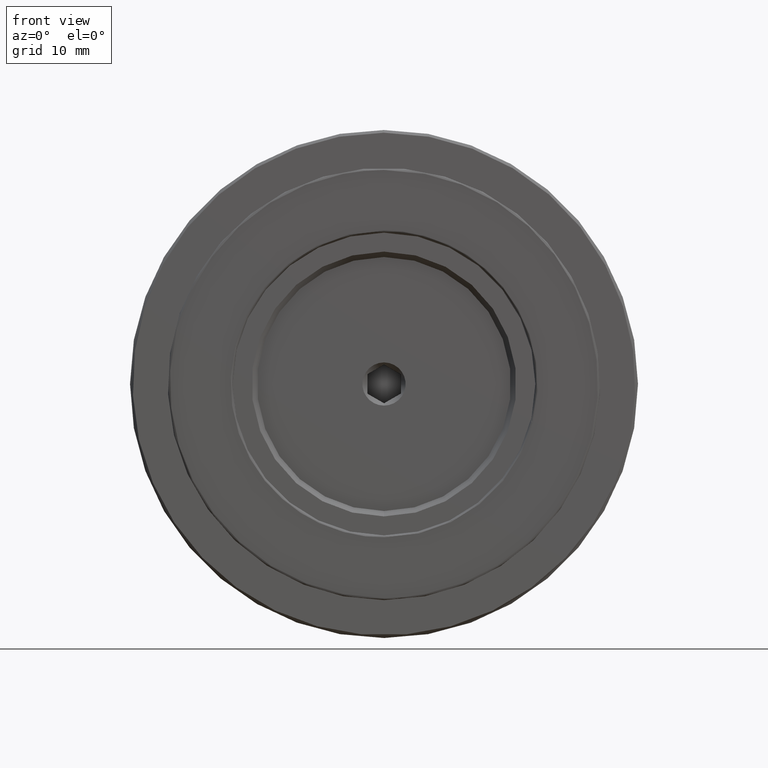
[diagram: clean part render]
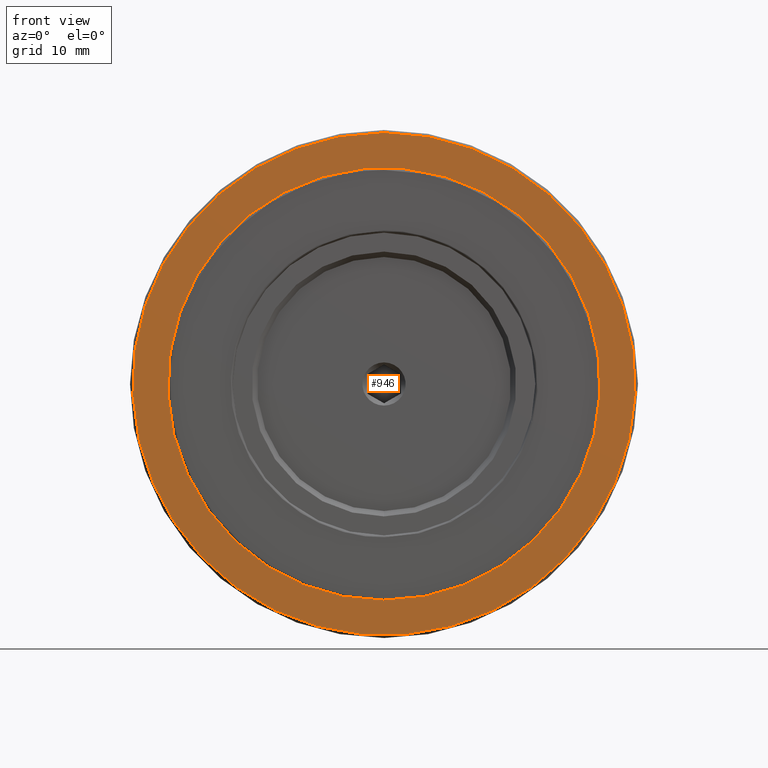
[diagram: same view with one face highlighted and labeled with its STEP entity id]
A machine part, front view. The second image highlights one B-rep face of the part: STEP entity #946.
In plain terms, the highlighted planar face has unit normal (0, 1, 0).
Its self-contained STEP definition (entity closure, byte-faithful):
#27 = CARTESIAN_POINT ( 'NONE',  ( 0.000000000000000000, 0.000000000000000000, 0.000000000000000000 ) ) ;
#114 = FACE_OUTER_BOUND ( 'NONE', #422, .T. ) ;
#118 = DIRECTION ( 'NONE',  ( 0.000000000000000000, 0.000000000000000000, -1.000000000000000000 ) ) ;
#124 = AXIS2_PLACEMENT_3D ( 'NONE', #932, #409, #698 ) ;
#128 = AXIS2_PLACEMENT_3D ( 'NONE', #27, #527, #118 ) ;
#150 = AXIS2_PLACEMENT_3D ( 'NONE', #1249, #833, #227 ) ;
#227 = DIRECTION ( 'NONE',  ( 0.000000000000000000, -0.000000000000000000, 1.000000000000000000 ) ) ;
#258 = EDGE_LOOP ( 'NONE', ( #477 ) ) ;
#334 = EDGE_CURVE ( 'NONE', #1269, #1269, #771, .T. ) ;
#409 = DIRECTION ( 'NONE',  ( 0.000000000000000000, 1.000000000000000000, 0.000000000000000000 ) ) ;
#422 = EDGE_LOOP ( 'NONE', ( #1050 ) ) ;
#477 = ORIENTED_EDGE ( 'NONE', *, *, #1038, .F. ) ;
#527 = DIRECTION ( 'NONE',  ( -0.000000000000000000, -1.000000000000000000, -0.000000000000000000 ) ) ;
#698 = DIRECTION ( 'NONE',  ( 0.000000000000000000, 0.000000000000000000, 1.000000000000000000 ) ) ;
#728 = FACE_BOUND ( 'NONE', #258, .T. ) ;
#745 = CARTESIAN_POINT ( 'NONE',  ( 0.000000000000000000, 0.000000000000000000, 23.24999999999999645 ) ) ;
#771 = CIRCLE ( 'NONE', #124, 23.24999999999999645 ) ;
#833 = DIRECTION ( 'NONE',  ( 0.000000000000000000, 1.000000000000000000, 0.000000000000000000 ) ) ;
#922 = CARTESIAN_POINT ( 'NONE',  ( 0.000000000000000000, 0.000000000000000000, -20.00000000000000000 ) ) ;
#932 = CARTESIAN_POINT ( 'NONE',  ( 0.000000000000000000, 0.000000000000000000, 0.000000000000000000 ) ) ;
#946 = ADVANCED_FACE ( 'NONE', ( #728, #114 ), #1135, .F. ) ;
#1038 = EDGE_CURVE ( 'NONE', #1224, #1224, #1191, .T. ) ;
#1050 = ORIENTED_EDGE ( 'NONE', *, *, #334, .F. ) ;
#1135 = PLANE ( 'NONE',  #150 ) ;
#1191 = CIRCLE ( 'NONE', #128, 20.00000000000000000 ) ;
#1224 = VERTEX_POINT ( 'NONE', #922 ) ;
#1249 = CARTESIAN_POINT ( 'NONE',  ( 0.000000000000000000, 0.000000000000000000, 0.000000000000000000 ) ) ;
#1269 = VERTEX_POINT ( 'NONE', #745 ) ;